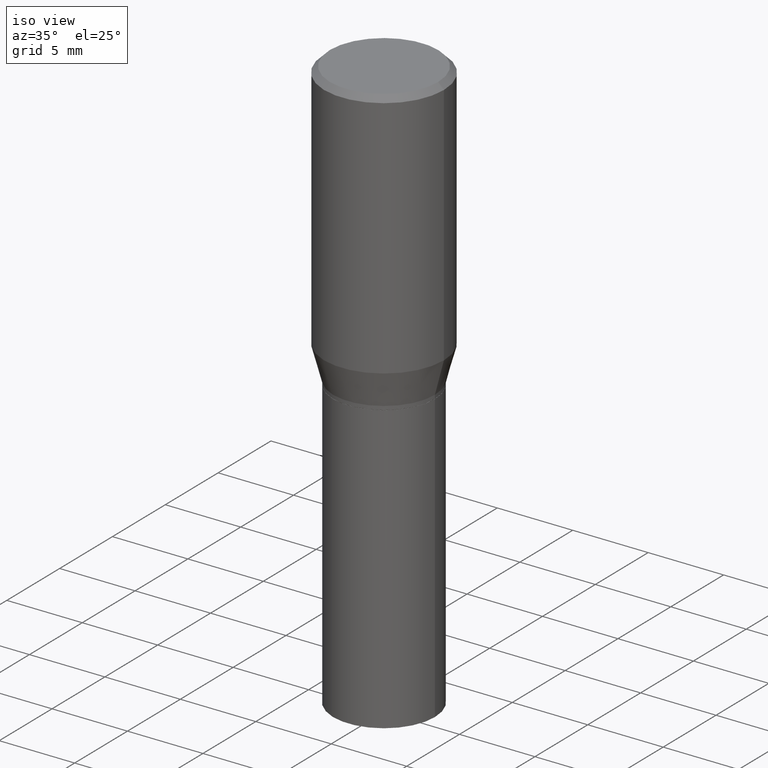
[diagram: clean part render]
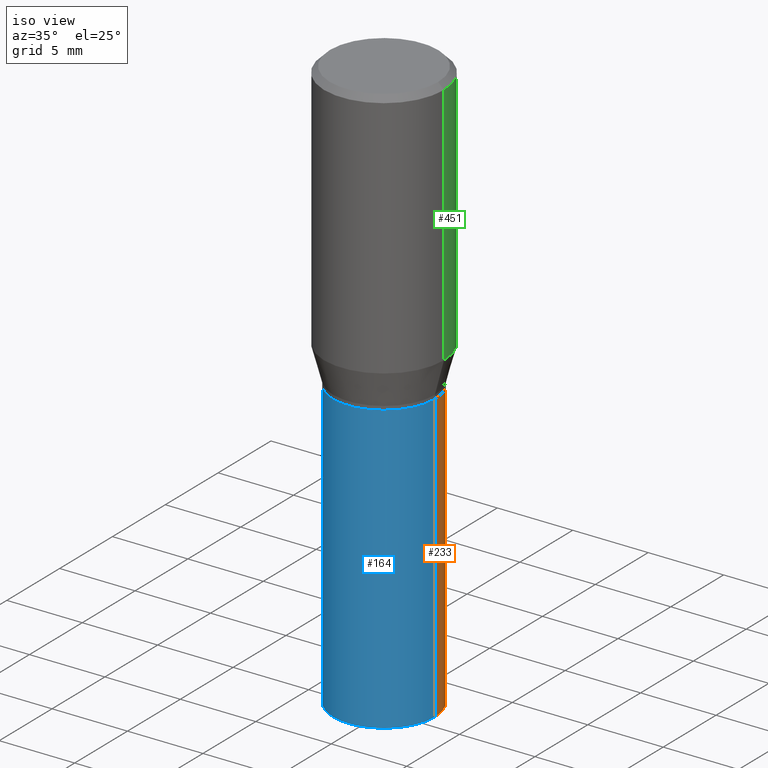
[diagram: same view with three faces highlighted in distinct colors, each labeled with its STEP entity id]
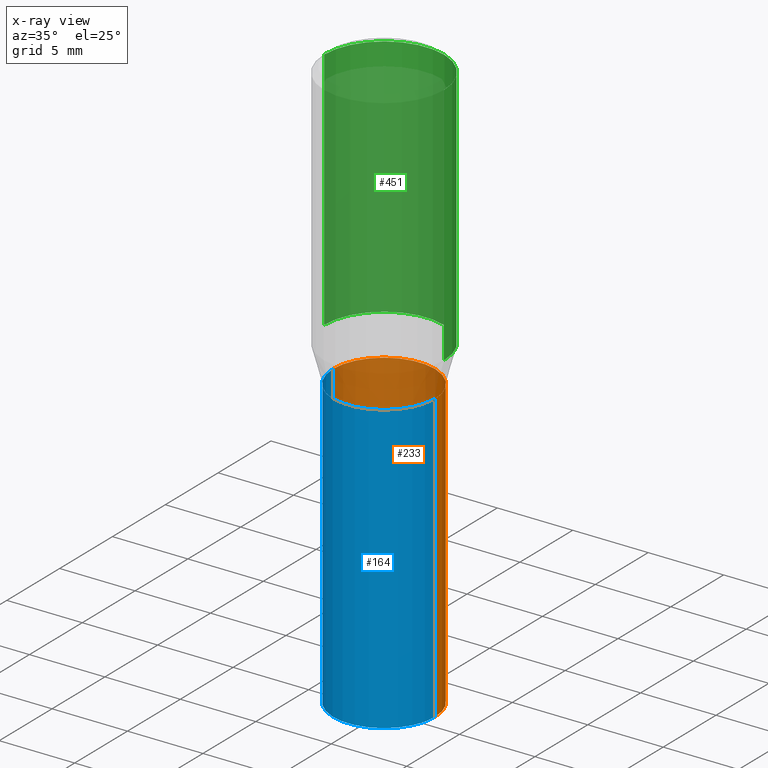
[diagram: x-ray of the same camera — body ghosted, the three highlighted faces saturated]
A machine part, iso view with three faces highlighted in distinct colors.
The next image is the same camera in x-ray (body ghosted, the three faces saturated) — at least one of them is partly hidden behind the body in this view.
Their STEP definitions:

[orange] entity #233 — the highlighted cylindrical surface (partial cylindrical patch) has radius 3.3731 mm, axis along (-0, 0, 1).
#21 = DIRECTION ( 'NONE',  ( 1.000000000000000000, -6.982962677686263555E-15, 0.000000000000000000 ) ) ;
#40 = EDGE_CURVE ( 'NONE', #282, #201, #196, .T. ) ;
#55 = ORIENTED_EDGE ( 'NONE', *, *, #383, .T. ) ;
#94 = CARTESIAN_POINT ( 'NONE',  ( -0.1328000000000000014, 9.436007530894130566E-16, -6.532345799858513932E-30 ) ) ;
#103 = DIRECTION ( 'NONE',  ( -2.445468806185136597E-29, 3.491481338843145583E-15, 1.000000000000000000 ) ) ;
#132 = CYLINDRICAL_SURFACE ( 'NONE', #452, 0.1328000000000000014 ) ;
#143 = CARTESIAN_POINT ( 'NONE',  ( 0.000000000000000000, 0.000000000000000000, 0.000000000000000000 ) ) ;
#151 = CIRCLE ( 'NONE', #392, 0.1328000000000000014 ) ;
#171 = DIRECTION ( 'NONE',  ( -2.445468806185136877E-29, 3.491481338843145188E-15, 1.000000000000000000 ) ) ;
#180 = CARTESIAN_POINT ( 'NONE',  ( 0.1328000000000000014, -3.545948447729095705E-15, -0.7500000000000001110 ) ) ;
#189 = DIRECTION ( 'NONE',  ( -2.445468806185136877E-29, 3.491481338843145188E-15, 1.000000000000000000 ) ) ;
#196 = LINE ( 'NONE', #388, #321 ) ;
#201 = VERTEX_POINT ( 'NONE', #180 ) ;
#210 = ORIENTED_EDGE ( 'NONE', *, *, #450, .T. ) ;
#214 = CARTESIAN_POINT ( 'NONE',  ( 3.668203209277704895E-29, -5.237222008264718177E-15, -1.500000000000000222 ) ) ;
#217 = EDGE_LOOP ( 'NONE', ( #55, #210, #448, #312 ) ) ;
#221 = DIRECTION ( 'NONE',  ( 1.000000000000000000, -6.982962677686266711E-15, 4.876176775795935232E-29 ) ) ;
#233 = ADVANCED_FACE ( 'NONE', ( #289 ), #132, .T. ) ;
#234 = DIRECTION ( 'NONE',  ( 1.000000000000000000, -6.982962677686268288E-15, 0.000000000000000000 ) ) ;
#244 = AXIS2_PLACEMENT_3D ( 'NONE', #324, #103, #234 ) ;
#282 = VERTEX_POINT ( 'NONE', #342 ) ;
#289 = FACE_OUTER_BOUND ( 'NONE', #217, .T. ) ;
#307 = CARTESIAN_POINT ( 'NONE',  ( -0.1328000000000000014, -2.984315753109125576E-15, -0.7500000000000001110 ) ) ;
#312 = ORIENTED_EDGE ( 'NONE', *, *, #40, .F. ) ;
#321 = VECTOR ( 'NONE', #171, 39.37007874015748143 ) ;
#324 = CARTESIAN_POINT ( 'NONE',  ( 1.834101604638852448E-29, -2.618611004132359088E-15, -0.7500000000000001110 ) ) ;
#327 = CARTESIAN_POINT ( 'NONE',  ( -0.1328000000000000014, -2.984315753109125576E-15, -1.500000000000000222 ) ) ;
#330 = VECTOR ( 'NONE', #189, 39.37007874015748143 ) ;
#342 = CARTESIAN_POINT ( 'NONE',  ( 0.1328000000000000014, -6.164559451861454793E-15, -1.500000000000000222 ) ) ;
#347 = DIRECTION ( 'NONE',  ( -2.445468806185136597E-29, 3.491481338843145583E-15, 1.000000000000000000 ) ) ;
#363 = VERTEX_POINT ( 'NONE', #307 ) ;
#383 = EDGE_CURVE ( 'NONE', #282, #404, #151, .T. ) ;
#388 = CARTESIAN_POINT ( 'NONE',  ( 0.1328000000000000014, -9.273374435967362223E-16, 6.475562758257002307E-30 ) ) ;
#392 = AXIS2_PLACEMENT_3D ( 'NONE', #214, #347, #21 ) ;
#404 = VERTEX_POINT ( 'NONE', #327 ) ;
#430 = EDGE_CURVE ( 'NONE', #201, #363, #436, .T. ) ;
#433 = LINE ( 'NONE', #94, #330 ) ;
#436 = CIRCLE ( 'NONE', #244, 0.1328000000000000014 ) ;
#448 = ORIENTED_EDGE ( 'NONE', *, *, #430, .F. ) ;
#450 = EDGE_CURVE ( 'NONE', #404, #363, #433, .T. ) ;
#452 = AXIS2_PLACEMENT_3D ( 'NONE', #143, #460, #221 ) ;
#460 = DIRECTION ( 'NONE',  ( -2.445468806185136597E-29, 3.491481338843145583E-15, 1.000000000000000000 ) ) ;

[blue] entity #164 — the highlighted cylindrical surface (partial cylindrical patch) has radius 3.3731 mm, axis along (-0, 0, 1).
#6 = ORIENTED_EDGE ( 'NONE', *, *, #40, .T. ) ;
#13 = CARTESIAN_POINT ( 'NONE',  ( 0.000000000000000000, 0.000000000000000000, 0.000000000000000000 ) ) ;
#19 = EDGE_CURVE ( 'NONE', #363, #201, #266, .T. ) ;
#40 = EDGE_CURVE ( 'NONE', #282, #201, #196, .T. ) ;
#46 = DIRECTION ( 'NONE',  ( -2.445468806185136597E-29, 3.491481338843145583E-15, 1.000000000000000000 ) ) ;
#75 = DIRECTION ( 'NONE',  ( 1.000000000000000000, -6.982962677686263555E-15, 0.000000000000000000 ) ) ;
#81 = CYLINDRICAL_SURFACE ( 'NONE', #245, 0.1328000000000000014 ) ;
#94 = CARTESIAN_POINT ( 'NONE',  ( -0.1328000000000000014, 9.436007530894130566E-16, -6.532345799858513932E-30 ) ) ;
#140 = EDGE_LOOP ( 'NONE', ( #331, #263, #6, #350 ) ) ;
#164 = ADVANCED_FACE ( 'NONE', ( #205 ), #81, .T. ) ;
#171 = DIRECTION ( 'NONE',  ( -2.445468806185136877E-29, 3.491481338843145188E-15, 1.000000000000000000 ) ) ;
#178 = EDGE_CURVE ( 'NONE', #404, #282, #256, .T. ) ;
#180 = CARTESIAN_POINT ( 'NONE',  ( 0.1328000000000000014, -3.545948447729095705E-15, -0.7500000000000001110 ) ) ;
#187 = DIRECTION ( 'NONE',  ( -2.445468806185136597E-29, 3.491481338843145583E-15, 1.000000000000000000 ) ) ;
#189 = DIRECTION ( 'NONE',  ( -2.445468806185136877E-29, 3.491481338843145188E-15, 1.000000000000000000 ) ) ;
#196 = LINE ( 'NONE', #388, #321 ) ;
#201 = VERTEX_POINT ( 'NONE', #180 ) ;
#205 = FACE_OUTER_BOUND ( 'NONE', #140, .T. ) ;
#207 = AXIS2_PLACEMENT_3D ( 'NONE', #301, #46, #253 ) ;
#245 = AXIS2_PLACEMENT_3D ( 'NONE', #13, #375, #288 ) ;
#253 = DIRECTION ( 'NONE',  ( 1.000000000000000000, -6.982962677686268288E-15, 0.000000000000000000 ) ) ;
#256 = CIRCLE ( 'NONE', #344, 0.1328000000000000014 ) ;
#263 = ORIENTED_EDGE ( 'NONE', *, *, #178, .T. ) ;
#266 = CIRCLE ( 'NONE', #207, 0.1328000000000000014 ) ;
#282 = VERTEX_POINT ( 'NONE', #342 ) ;
#288 = DIRECTION ( 'NONE',  ( 1.000000000000000000, -6.982962677686266711E-15, 4.876176775795935232E-29 ) ) ;
#301 = CARTESIAN_POINT ( 'NONE',  ( 1.834101604638852448E-29, -2.618611004132359088E-15, -0.7500000000000001110 ) ) ;
#307 = CARTESIAN_POINT ( 'NONE',  ( -0.1328000000000000014, -2.984315753109125576E-15, -0.7500000000000001110 ) ) ;
#321 = VECTOR ( 'NONE', #171, 39.37007874015748143 ) ;
#327 = CARTESIAN_POINT ( 'NONE',  ( -0.1328000000000000014, -2.984315753109125576E-15, -1.500000000000000222 ) ) ;
#330 = VECTOR ( 'NONE', #189, 39.37007874015748143 ) ;
#331 = ORIENTED_EDGE ( 'NONE', *, *, #450, .F. ) ;
#342 = CARTESIAN_POINT ( 'NONE',  ( 0.1328000000000000014, -6.164559451861454793E-15, -1.500000000000000222 ) ) ;
#344 = AXIS2_PLACEMENT_3D ( 'NONE', #366, #187, #75 ) ;
#350 = ORIENTED_EDGE ( 'NONE', *, *, #19, .F. ) ;
#363 = VERTEX_POINT ( 'NONE', #307 ) ;
#366 = CARTESIAN_POINT ( 'NONE',  ( 3.668203209277704895E-29, -5.237222008264718177E-15, -1.500000000000000222 ) ) ;
#375 = DIRECTION ( 'NONE',  ( -2.445468806185136597E-29, 3.491481338843145583E-15, 1.000000000000000000 ) ) ;
#388 = CARTESIAN_POINT ( 'NONE',  ( 0.1328000000000000014, -9.273374435967362223E-16, 6.475562758257002307E-30 ) ) ;
#404 = VERTEX_POINT ( 'NONE', #327 ) ;
#433 = LINE ( 'NONE', #94, #330 ) ;
#450 = EDGE_CURVE ( 'NONE', #404, #363, #433, .T. ) ;

[green] entity #451 — the highlighted cylindrical surface (partial cylindrical patch) has radius 3.9688 mm, axis along (-0, 0, 1).
#5 = VECTOR ( 'NONE', #264, 39.37007874015748143 ) ;
#22 = CARTESIAN_POINT ( 'NONE',  ( 0.1562500000000000000, -1.091087918388479174E-15, 7.619026212181150377E-30 ) ) ;
#28 = ORIENTED_EDGE ( 'NONE', *, *, #315, .T. ) ;
#29 = CIRCLE ( 'NONE', #378, 0.1562500000000000000 ) ;
#32 = CARTESIAN_POINT ( 'NONE',  ( 0.1562500000000000000, -3.369221563289251454E-15, -0.6524834085625104141 ) ) ;
#51 = CIRCLE ( 'NONE', #304, 0.1562500000000000000 ) ;
#57 = AXIS2_PLACEMENT_3D ( 'NONE', #69, #136, #223 ) ;
#69 = CARTESIAN_POINT ( 'NONE',  ( 0.000000000000000000, 0.000000000000000000, 0.000000000000000000 ) ) ;
#71 = CYLINDRICAL_SURFACE ( 'NONE', #57, 0.1562500000000000000 ) ;
#73 = CARTESIAN_POINT ( 'NONE',  ( -0.1562500000000000000, 1.110223024625156540E-15, -7.685836078523291160E-30 ) ) ;
#77 = CARTESIAN_POINT ( 'NONE',  ( 1.595627822192971094E-29, -2.278133644900773069E-15, -0.6524834085625104141 ) ) ;
#92 = VECTOR ( 'NONE', #185, 39.37007874015748143 ) ;
#136 = DIRECTION ( 'NONE',  ( -2.445468806185136597E-29, 3.491481338843145583E-15, 1.000000000000000000 ) ) ;
#148 = DIRECTION ( 'NONE',  ( -2.445468806185136597E-29, 3.491481338843145583E-15, 1.000000000000000000 ) ) ;
#165 = CARTESIAN_POINT ( 'NONE',  ( 3.668203209277705088E-31, -5.237222008264718399E-17, -0.01499999999999999944 ) ) ;
#168 = LINE ( 'NONE', #22, #5 ) ;
#185 = DIRECTION ( 'NONE',  ( -2.445468806185136877E-29, 3.491481338843145188E-15, 1.000000000000000000 ) ) ;
#198 = VERTEX_POINT ( 'NONE', #32 ) ;
#223 = DIRECTION ( 'NONE',  ( 1.000000000000000000, -6.982962677686266711E-15, 4.876176775795936353E-29 ) ) ;
#230 = CARTESIAN_POINT ( 'NONE',  ( 0.1562500000000000000, -1.143460138471126253E-15, -0.01499999999999999944 ) ) ;
#242 = ORIENTED_EDGE ( 'NONE', *, *, #397, .F. ) ;
#247 = CARTESIAN_POINT ( 'NONE',  ( -0.1562500000000000000, -5.502990786655347834E-17, -0.01499999999999999944 ) ) ;
#264 = DIRECTION ( 'NONE',  ( -2.445468806185136877E-29, 3.491481338843145188E-15, 1.000000000000000000 ) ) ;
#274 = EDGE_LOOP ( 'NONE', ( #444, #28, #422, #242 ) ) ;
#283 = DIRECTION ( 'NONE',  ( -2.445468806185136597E-29, 3.491481338843145583E-15, 1.000000000000000000 ) ) ;
#298 = DIRECTION ( 'NONE',  ( 1.000000000000000000, -6.982962677686265133E-15, 0.000000000000000000 ) ) ;
#304 = AXIS2_PLACEMENT_3D ( 'NONE', #165, #283, #395 ) ;
#308 = EDGE_CURVE ( 'NONE', #310, #384, #51, .T. ) ;
#310 = VERTEX_POINT ( 'NONE', #230 ) ;
#315 = EDGE_CURVE ( 'NONE', #415, #384, #358, .T. ) ;
#348 = EDGE_CURVE ( 'NONE', #198, #415, #29, .T. ) ;
#358 = LINE ( 'NONE', #73, #92 ) ;
#378 = AXIS2_PLACEMENT_3D ( 'NONE', #77, #148, #298 ) ;
#384 = VERTEX_POINT ( 'NONE', #247 ) ;
#395 = DIRECTION ( 'NONE',  ( 1.000000000000000000, -6.982962677686266711E-15, 0.000000000000000000 ) ) ;
#397 = EDGE_CURVE ( 'NONE', #198, #310, #168, .T. ) ;
#415 = VERTEX_POINT ( 'NONE', #455 ) ;
#422 = ORIENTED_EDGE ( 'NONE', *, *, #308, .F. ) ;
#444 = ORIENTED_EDGE ( 'NONE', *, *, #348, .T. ) ;
#451 = ADVANCED_FACE ( 'NONE', ( #466 ), #71, .T. ) ;
#455 = CARTESIAN_POINT ( 'NONE',  ( -0.1562500000000000000, -1.167910620275616332E-15, -0.6524834085625104141 ) ) ;
#466 = FACE_OUTER_BOUND ( 'NONE', #274, .T. ) ;